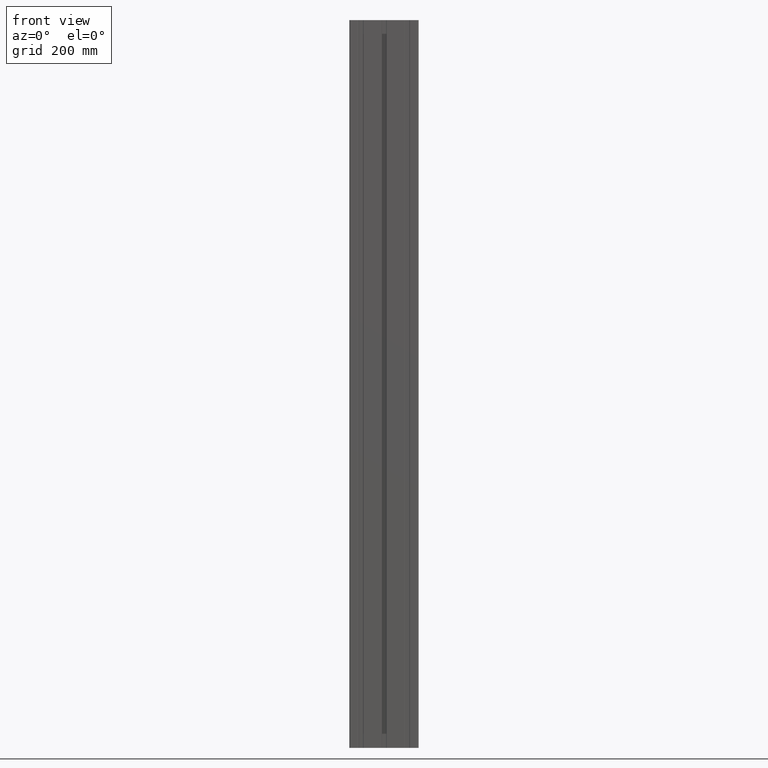
[diagram: clean part render]
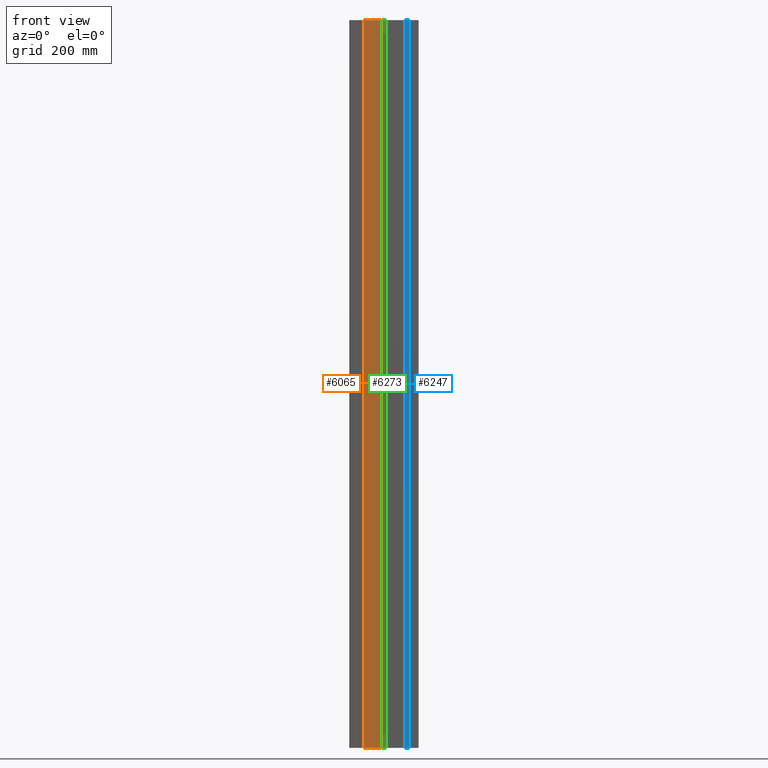
[diagram: same view with three faces highlighted in distinct colors, each labeled with its STEP entity id]
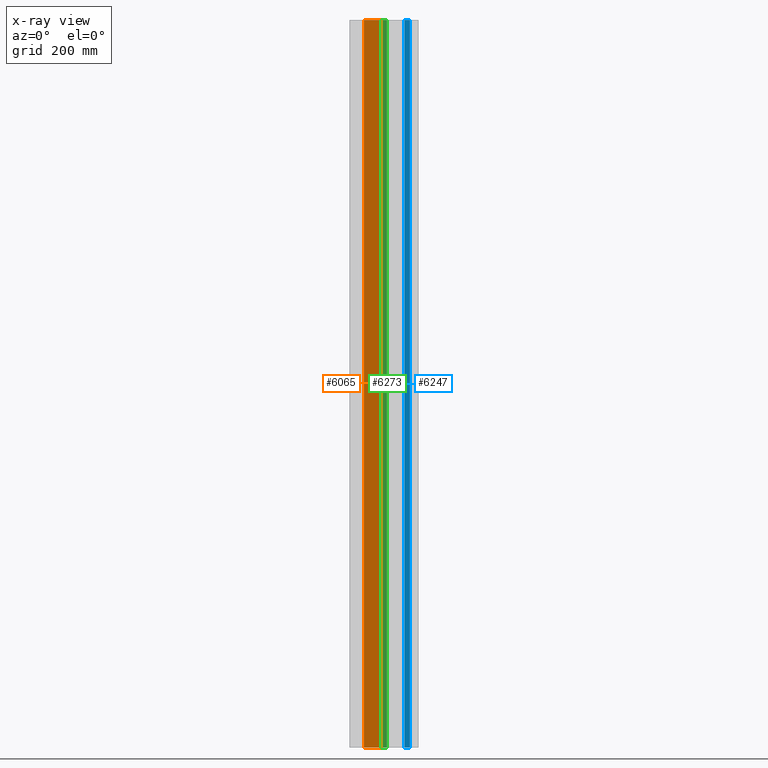
[diagram: x-ray of the same camera — body ghosted, the three highlighted faces saturated]
A machine part, front view with three faces highlighted in distinct colors.
The next image is the same camera in x-ray (body ghosted, the three faces saturated) — at least one of them is partly hidden behind the body in this view.
Their STEP definitions:

[orange] entity #6065 — the highlighted planar face has unit normal (0, -1, 0).
#39=PLANE('',#6538);
#203=FACE_OUTER_BOUND('',#513,.T.);
#513=EDGE_LOOP('',(#4160,#4161,#4162,#4163));
#818=LINE('',#8784,#1429);
#984=LINE('',#9399,#1595);
#985=LINE('',#9402,#1596);
#986=LINE('',#9403,#1597);
#1429=VECTOR('',#6991,29.9999400041);
#1595=VECTOR('',#7463,1260.);
#1596=VECTOR('',#7466,29.9999400041);
#1597=VECTOR('',#7467,1260.);
#2332=VERTEX_POINT('',#8781);
#2333=VERTEX_POINT('',#8783);
#2629=VERTEX_POINT('',#9397);
#2630=VERTEX_POINT('',#9401);
#2931=EDGE_CURVE('',#2332,#2333,#818,.T.);
#3239=EDGE_CURVE('',#2629,#2332,#984,.T.);
#3240=EDGE_CURVE('',#2629,#2630,#985,.T.);
#3241=EDGE_CURVE('',#2333,#2630,#986,.T.);
#4160=ORIENTED_EDGE('',*,*,#2931,.F.);
#4161=ORIENTED_EDGE('',*,*,#3239,.F.);
#4162=ORIENTED_EDGE('',*,*,#3240,.T.);
#4163=ORIENTED_EDGE('',*,*,#3241,.F.);
#6065=ADVANCED_FACE('',(#203),#39,.T.);
#6538=AXIS2_PLACEMENT_3D('',#9400,#7464,#7465);
#6991=DIRECTION('',(-1.,0.,0.));
#7463=DIRECTION('',(0.,0.,-1.));
#7464=DIRECTION('center_axis',(0.,-1.,0.));
#7465=DIRECTION('ref_axis',(0.,0.,-1.));
#7466=DIRECTION('',(-1.,0.,0.));
#7467=DIRECTION('',(0.,0.,1.));
#8781=CARTESIAN_POINT('',(-44.9999100098846,-19.9999600000858,0.));
#8783=CARTESIAN_POINT('',(-74.9998500139846,-19.9999600000858,0.));
#8784=CARTESIAN_POINT('',(-44.9999100098846,-19.9999600000858,0.));
#9397=CARTESIAN_POINT('',(-44.9999100098846,-19.9999600000858,1260.));
#9399=CARTESIAN_POINT('',(-44.9999100098846,-19.9999600000858,1260.));
#9400=CARTESIAN_POINT('Origin',(-74.9998500139846,-19.9999600000858,0.));
#9401=CARTESIAN_POINT('',(-74.9998500139846,-19.9999600000858,1260.));
#9402=CARTESIAN_POINT('',(-44.9999100098846,-19.9999600000858,1260.));
#9403=CARTESIAN_POINT('',(-74.9998500139846,-19.9999600000859,0.));

[blue] entity #6247 — the highlighted planar face has unit normal (0, -1, 0).
#137=PLANE('',#6804);
#385=FACE_OUTER_BOUND('',#695,.T.);
#695=EDGE_LOOP('',(#4888,#4889,#4890,#4891));
#913=LINE('',#9138,#1524);
#1266=LINE('',#10131,#1877);
#1267=LINE('',#10134,#1878);
#1268=LINE('',#10135,#1879);
#1524=VECTOR('',#7250,9.80759224080001);
#1877=VECTOR('',#8277,1260.);
#1878=VECTOR('',#8280,9.80759224080002);
#1879=VECTOR('',#8281,1260.);
#2509=VERTEX_POINT('',#9135);
#2510=VERTEX_POINT('',#9137);
#2813=VERTEX_POINT('',#10129);
#2814=VERTEX_POINT('',#10133);
#3108=EDGE_CURVE('',#2509,#2510,#913,.T.);
#3605=EDGE_CURVE('',#2813,#2509,#1266,.T.);
#3606=EDGE_CURVE('',#2813,#2814,#1267,.T.);
#3607=EDGE_CURVE('',#2510,#2814,#1268,.T.);
#4888=ORIENTED_EDGE('',*,*,#3108,.F.);
#4889=ORIENTED_EDGE('',*,*,#3605,.F.);
#4890=ORIENTED_EDGE('',*,*,#3606,.T.);
#4891=ORIENTED_EDGE('',*,*,#3607,.F.);
#6247=ADVANCED_FACE('',(#385),#137,.T.);
#6804=AXIS2_PLACEMENT_3D('',#10132,#8278,#8279);
#7250=DIRECTION('',(-1.,0.,0.));
#8277=DIRECTION('',(0.,0.,-1.));
#8278=DIRECTION('center_axis',(0.,-1.,0.));
#8279=DIRECTION('ref_axis',(0.,0.,-1.));
#8280=DIRECTION('',(-1.,0.,0.));
#8281=DIRECTION('',(0.,0.,1.));
#9135=CARTESIAN_POINT('',(4.90379609338223,-7.49998499523528,0.));
#9137=CARTESIAN_POINT('',(-4.90379614741778,-7.49998499523528,0.));
#9138=CARTESIAN_POINT('',(4.90379609338223,-7.49998499523528,0.));
#10129=CARTESIAN_POINT('',(4.90379609338223,-7.49998499523528,1260.));
#10131=CARTESIAN_POINT('',(4.90379609338223,-7.49998499523528,1260.));
#10132=CARTESIAN_POINT('Origin',(-4.90379614741778,-7.49998499523528,0.));
#10133=CARTESIAN_POINT('',(-4.90379614741779,-7.49998499523528,1260.));
#10134=CARTESIAN_POINT('',(4.90379609338223,-7.49998499523528,1260.));
#10135=CARTESIAN_POINT('',(-4.90379614741778,-7.49998499523528,0.));

[green] entity #6273 — the highlighted planar face has unit normal (0, -1, 0).
#151=PLANE('',#6842);
#411=FACE_OUTER_BOUND('',#721,.T.);
#721=EDGE_LOOP('',(#4992,#4993,#4994,#4995));
#810=LINE('',#8756,#1421);
#927=LINE('',#9189,#1538);
#1306=LINE('',#10235,#1917);
#1307=LINE('',#10237,#1918);
#1421=VECTOR('',#6969,1260.);
#1538=VECTOR('',#7288,9.8075922408001);
#1917=VECTOR('',#8393,1260.);
#1918=VECTOR('',#8396,9.8075922468318);
#2318=VERTEX_POINT('',#8752);
#2320=VERTEX_POINT('',#8755);
#2535=VERTEX_POINT('',#9187);
#2839=VERTEX_POINT('',#10233);
#2917=EDGE_CURVE('',#2318,#2320,#810,.T.);
#3134=EDGE_CURVE('',#2535,#2318,#927,.T.);
#3657=EDGE_CURVE('',#2839,#2535,#1306,.T.);
#3658=EDGE_CURVE('',#2839,#2320,#1307,.T.);
#4992=ORIENTED_EDGE('',*,*,#3134,.F.);
#4993=ORIENTED_EDGE('',*,*,#3657,.F.);
#4994=ORIENTED_EDGE('',*,*,#3658,.T.);
#4995=ORIENTED_EDGE('',*,*,#2917,.F.);
#6273=ADVANCED_FACE('',(#411),#151,.T.);
#6842=AXIS2_PLACEMENT_3D('',#10236,#8394,#8395);
#6969=DIRECTION('',(0.,0.,1.));
#7288=DIRECTION('',(-1.,0.,0.));
#8393=DIRECTION('',(0.,0.,-1.));
#8394=DIRECTION('center_axis',(0.,-1.,0.));
#8395=DIRECTION('ref_axis',(0.,0.,-1.));
#8396=DIRECTION('',(-1.,0.,0.));
#8752=CARTESIAN_POINT('',(-44.9037161372334,-7.4999849951846,0.));
#8755=CARTESIAN_POINT('',(-44.9037161390206,-7.4999849951846,1260.));
#8756=CARTESIAN_POINT('',(-44.9037161372334,-7.4999849951846,0.));
#9187=CARTESIAN_POINT('',(-35.0961238964333,-7.49998499518461,0.));
#9189=CARTESIAN_POINT('',(-35.0961238964333,-7.4999849951846,0.));
#10233=CARTESIAN_POINT('',(-35.0961238964334,-7.49998499518461,1260.));
#10235=CARTESIAN_POINT('',(-35.0961238964333,-7.49998499518461,1260.));
#10236=CARTESIAN_POINT('Origin',(-39.9999200148333,-7.49998499518461,0.));
#10237=CARTESIAN_POINT('',(-35.0961238964334,-7.49998499518461,1260.));